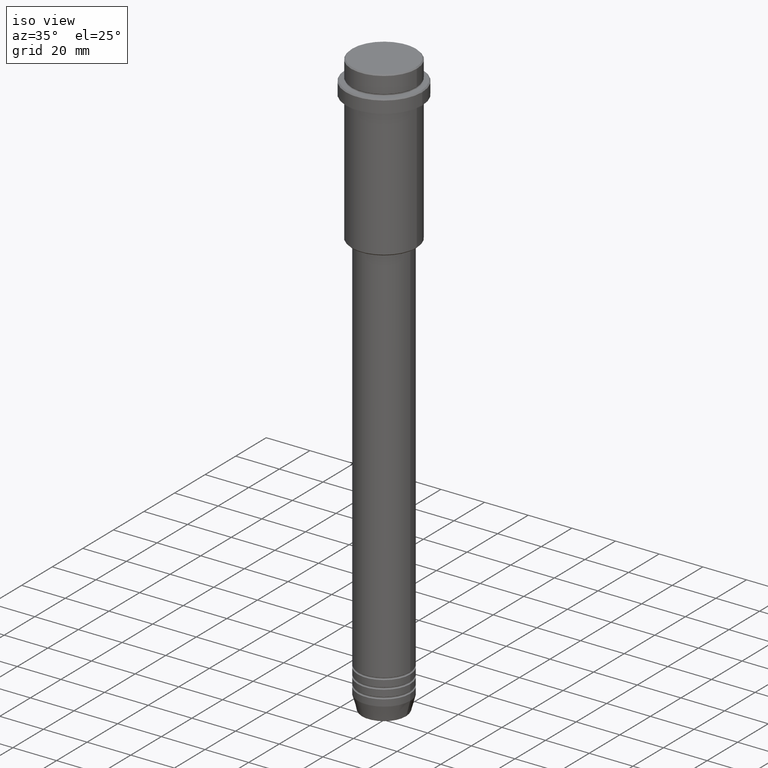
[diagram: clean part render]
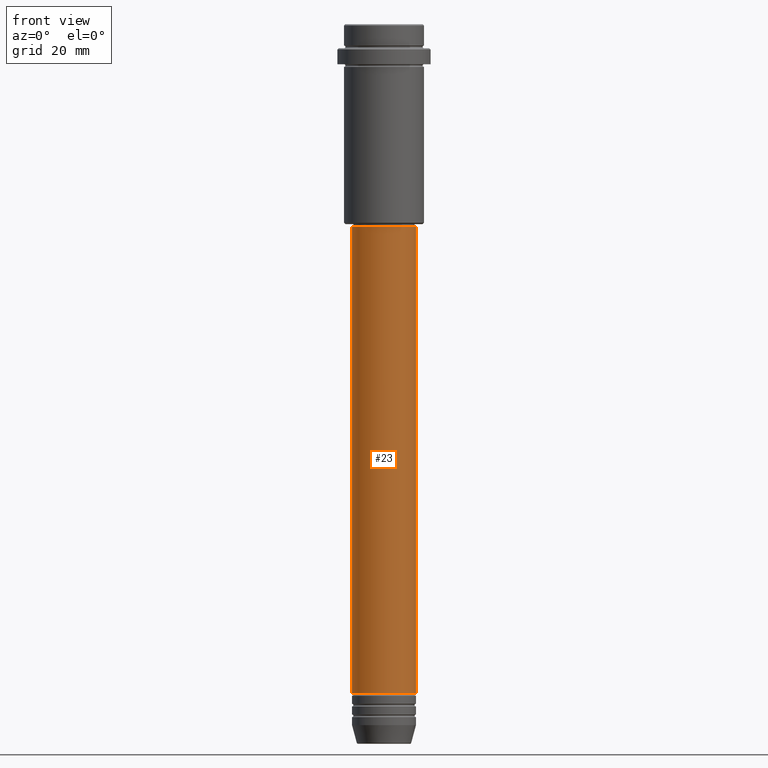
[diagram: tour spotlight — one face highlighted and labeled with its STEP entity id]
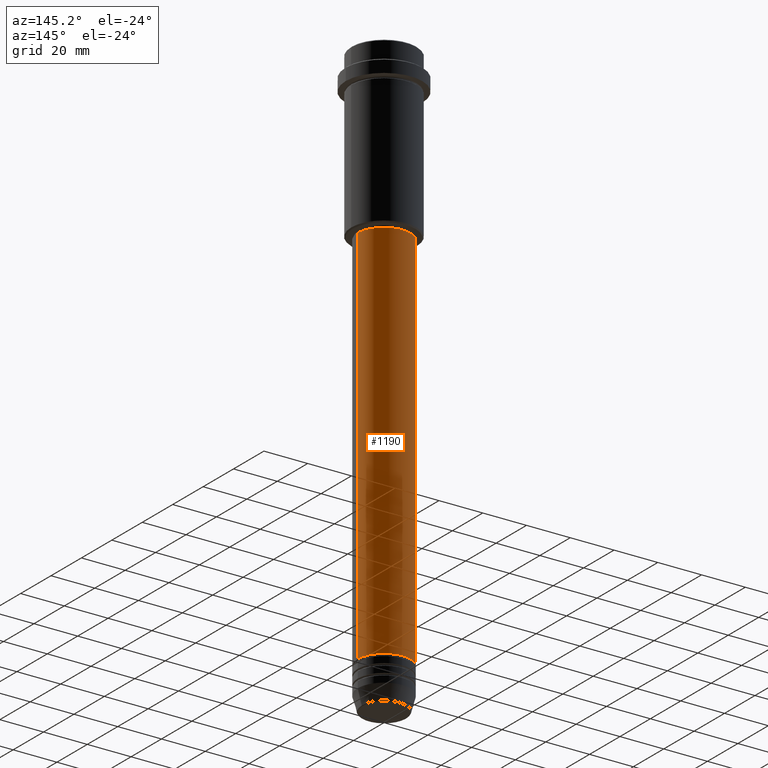
[diagram: tour spotlight — one face highlighted and labeled with its STEP entity id]
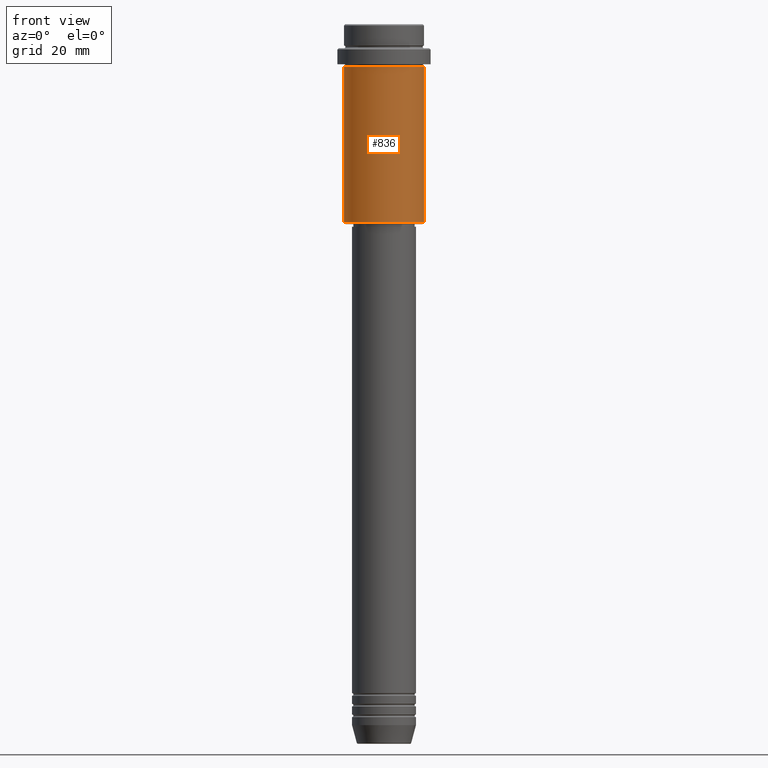
[diagram: tour spotlight — one face highlighted and labeled with its STEP entity id]
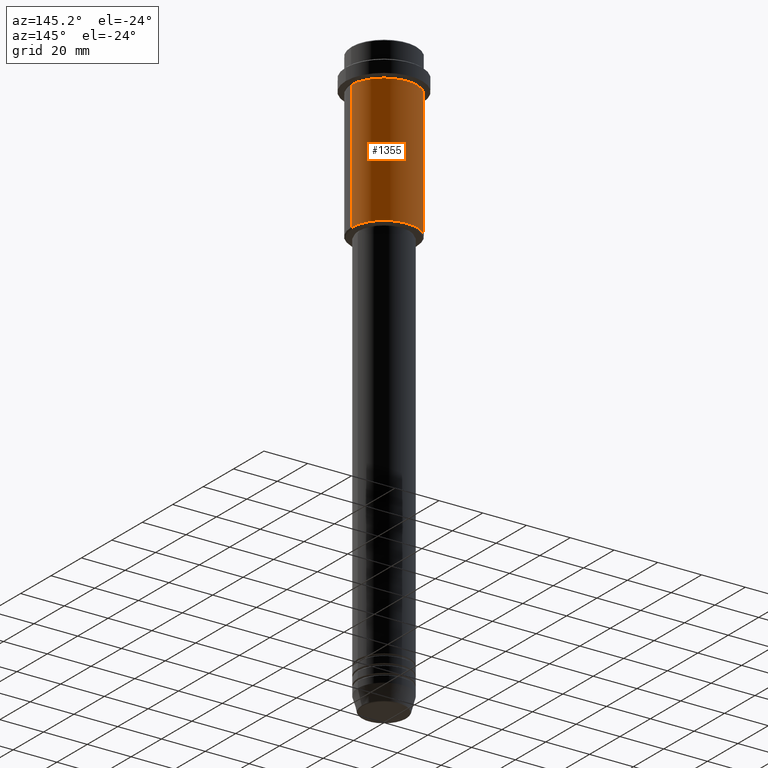
[diagram: tour spotlight — one face highlighted and labeled with its STEP entity id]
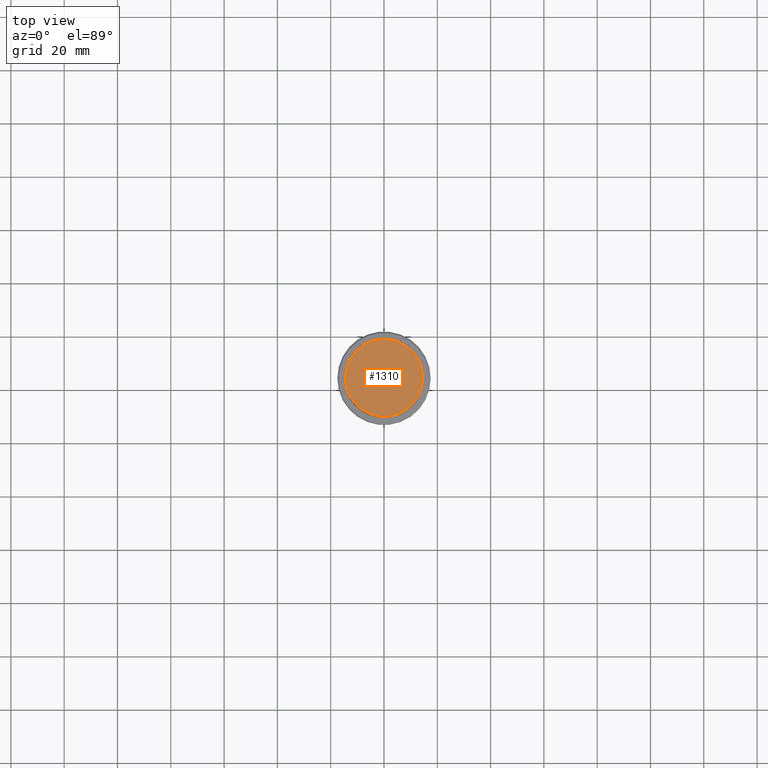
[diagram: tour spotlight — one face highlighted and labeled with its STEP entity id]
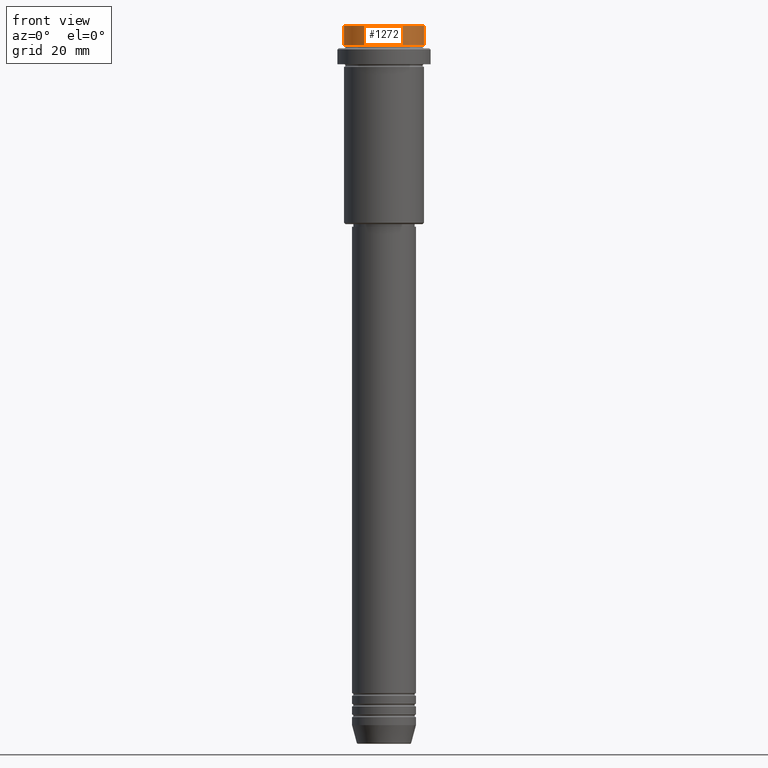
[diagram: tour spotlight — one face highlighted and labeled with its STEP entity id]
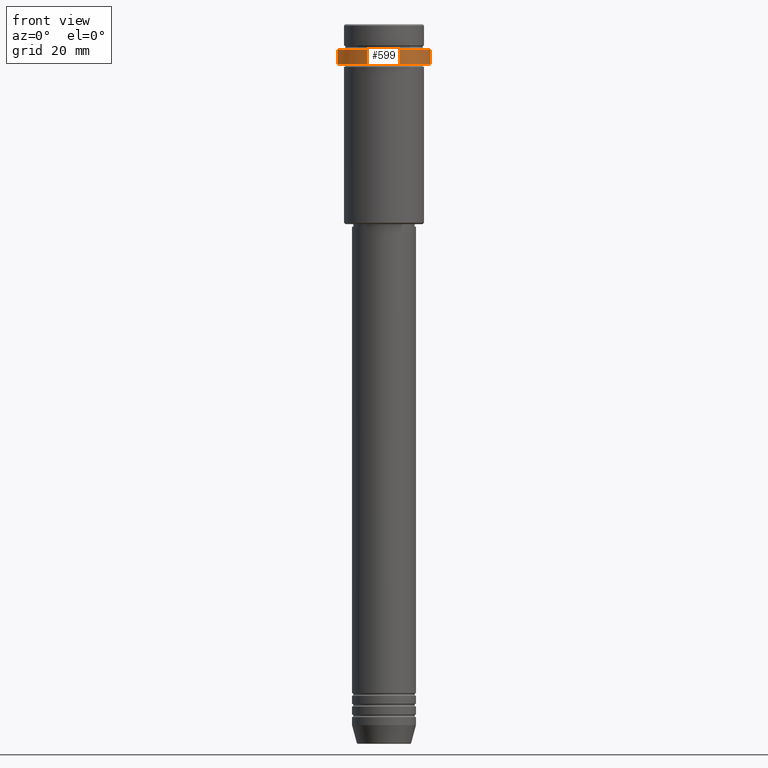
[diagram: tour spotlight — one face highlighted and labeled with its STEP entity id]
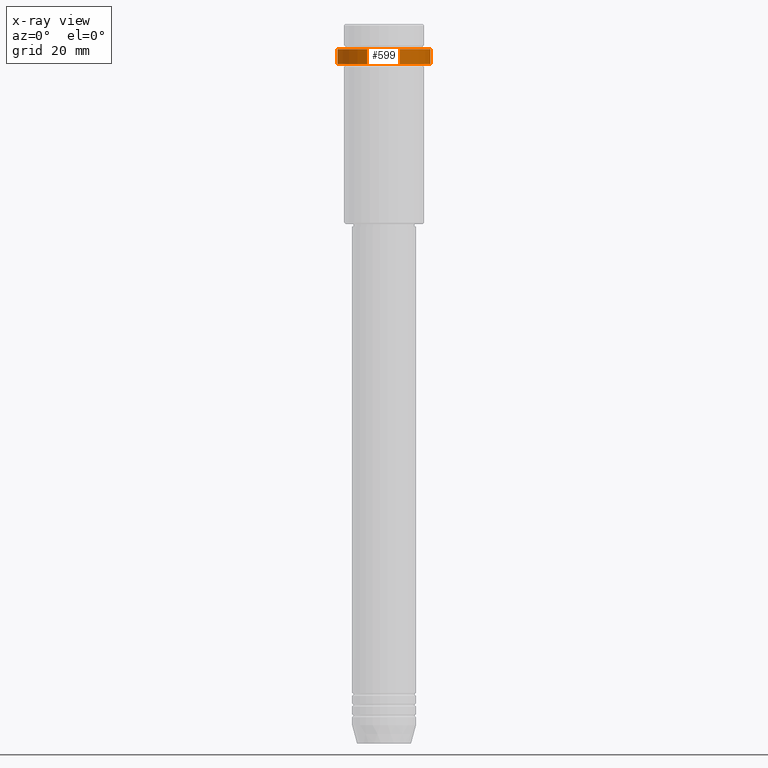
[diagram: x-ray of the same camera — body ghosted, this tour face saturated]
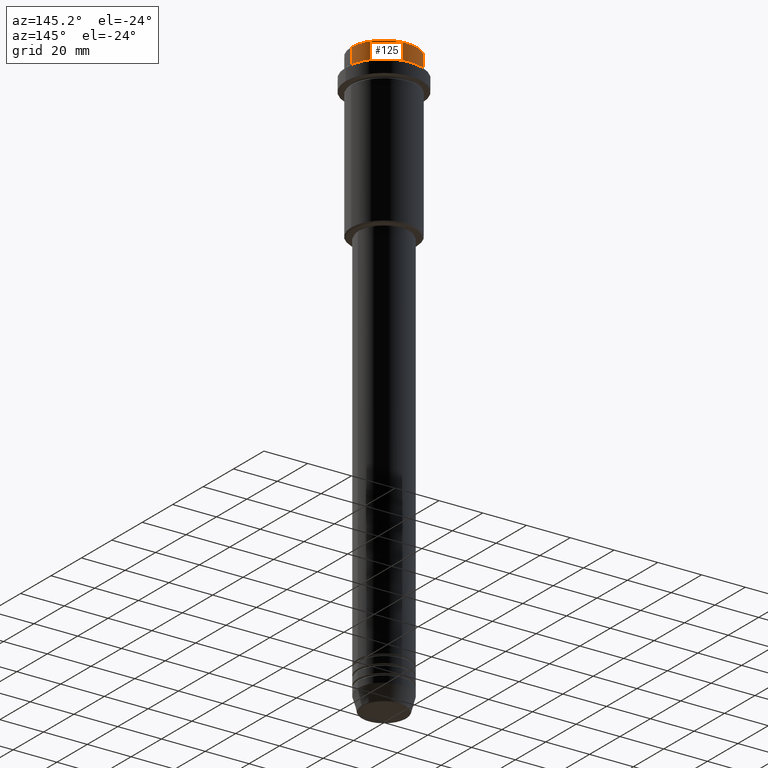
[diagram: tour spotlight — one face highlighted and labeled with its STEP entity id]
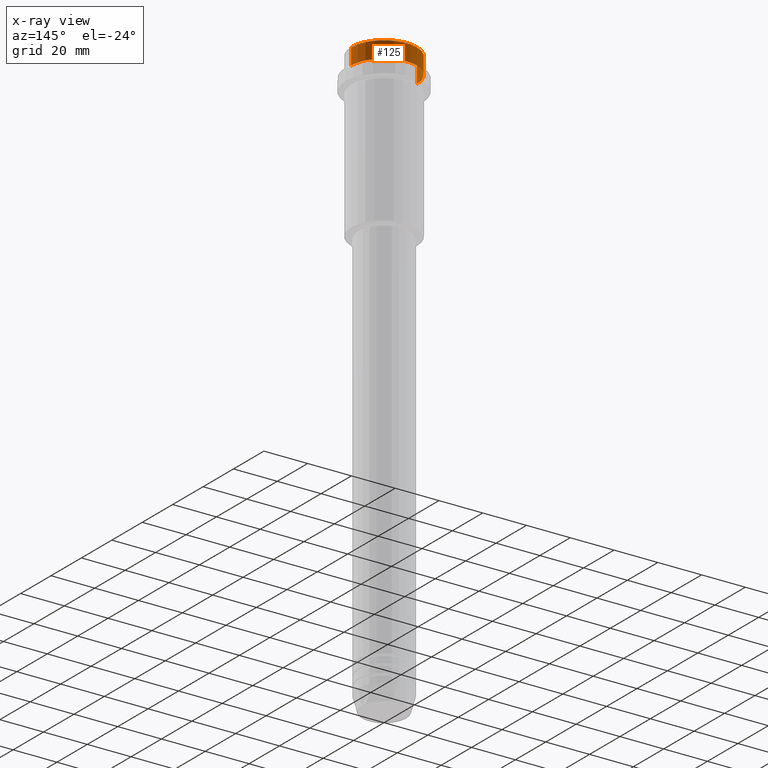
[diagram: x-ray of the same camera — body ghosted, this tour face saturated]
A machine part: a face-by-face anatomy tour. The part has 52 B-rep faces; the first image is the clean iso view, then the 8 largest visible faces are spotlighted one at a time (largest first), each with its STEP entity span.

Face 1 — front view, entity #23. In plain terms, the highlighted cylindrical surface (edge-blend (fillet) strip) has radius 12 mm, axis along (-0, -0, 1).
Definition (entity closure, byte-faithful):
#23 = ADVANCED_FACE ( 'NONE', ( #457 ), #1292, .T. ) ;
#102 = CARTESIAN_POINT ( 'NONE',  ( -12.00000000000000000, 1.469576158976823947E-15, -250.9999999999998863 ) ) ;
#138 = CARTESIAN_POINT ( 'NONE',  ( 0.000000000000000000, 0.000000000000000000, -250.9999999999998863 ) ) ;
#154 = LINE ( 'NONE', #588, #877 ) ;
#250 = CIRCLE ( 'NONE', #1174, 12.00000000000000000 ) ;
#271 = VECTOR ( 'NONE', #848, 1000.000000000000000 ) ;
#411 = EDGE_CURVE ( 'NONE', #838, #1134, #1053, .T. ) ;
#440 = AXIS2_PLACEMENT_3D ( 'NONE', #1089, #646, #555 ) ;
#448 = ORIENTED_EDGE ( 'NONE', *, *, #676, .F. ) ;
#457 = FACE_OUTER_BOUND ( 'NONE', #895, .T. ) ;
#496 = CARTESIAN_POINT ( 'NONE',  ( 11.99999999999999822, 0.000000000000000000, -76.00000000000001421 ) ) ;
#538 = CARTESIAN_POINT ( 'NONE',  ( -11.99999999999999822, 1.469576158976823750E-15, -76.00000000000001421 ) ) ;
#555 = DIRECTION ( 'NONE',  ( 1.000000000000000000, 0.000000000000000000, 0.000000000000000000 ) ) ;
#588 = CARTESIAN_POINT ( 'NONE',  ( -12.00000000000000000, 1.469576158976823947E-15, 0.000000000000000000 ) ) ;
#646 = DIRECTION ( 'NONE',  ( -0.000000000000000000, -0.000000000000000000, 1.000000000000000000 ) ) ;
#648 = CARTESIAN_POINT ( 'NONE',  ( 12.00000000000000000, 0.000000000000000000, 0.000000000000000000 ) ) ;
#653 = AXIS2_PLACEMENT_3D ( 'NONE', #1414, #755, #1323 ) ;
#676 = EDGE_CURVE ( 'NONE', #1189, #838, #154, .T. ) ;
#755 = DIRECTION ( 'NONE',  ( -0.000000000000000000, -0.000000000000000000, 1.000000000000000000 ) ) ;
#760 = VERTEX_POINT ( 'NONE', #1293 ) ;
#799 = ORIENTED_EDGE ( 'NONE', *, *, #411, .F. ) ;
#828 = ORIENTED_EDGE ( 'NONE', *, *, #981, .T. ) ;
#838 = VERTEX_POINT ( 'NONE', #538 ) ;
#848 = DIRECTION ( 'NONE',  ( -0.000000000000000000, -0.000000000000000000, 1.000000000000000000 ) ) ;
#877 = VECTOR ( 'NONE', #1017, 1000.000000000000000 ) ;
#895 = EDGE_LOOP ( 'NONE', ( #448, #828, #1317, #799 ) ) ;
#903 = DIRECTION ( 'NONE',  ( -0.000000000000000000, -0.000000000000000000, 1.000000000000000000 ) ) ;
#981 = EDGE_CURVE ( 'NONE', #1189, #760, #250, .T. ) ;
#993 = DIRECTION ( 'NONE',  ( 1.000000000000000000, 0.000000000000000000, 0.000000000000000000 ) ) ;
#1017 = DIRECTION ( 'NONE',  ( -0.000000000000000000, -0.000000000000000000, 1.000000000000000000 ) ) ;
#1053 = CIRCLE ( 'NONE', #440, 11.99999999999999822 ) ;
#1059 = LINE ( 'NONE', #648, #271 ) ;
#1089 = CARTESIAN_POINT ( 'NONE',  ( 0.000000000000000000, 0.000000000000000000, -76.00000000000001421 ) ) ;
#1134 = VERTEX_POINT ( 'NONE', #496 ) ;
#1174 = AXIS2_PLACEMENT_3D ( 'NONE', #138, #903, #993 ) ;
#1189 = VERTEX_POINT ( 'NONE', #102 ) ;
#1217 = EDGE_CURVE ( 'NONE', #760, #1134, #1059, .T. ) ;
#1292 = CYLINDRICAL_SURFACE ( 'NONE', #653, 12.00000000000000000 ) ;
#1293 = CARTESIAN_POINT ( 'NONE',  ( 12.00000000000000000, 0.000000000000000000, -250.9999999999998863 ) ) ;
#1317 = ORIENTED_EDGE ( 'NONE', *, *, #1217, .T. ) ;
#1323 = DIRECTION ( 'NONE',  ( 1.000000000000000000, 0.000000000000000000, 0.000000000000000000 ) ) ;
#1414 = CARTESIAN_POINT ( 'NONE',  ( 0.000000000000000000, 0.000000000000000000, 0.000000000000000000 ) ) ;

Face 2 — auxiliary view, entity #1190. In plain terms, the highlighted cylindrical surface (edge-blend (fillet) strip) has radius 12 mm, axis along (-0, -0, 1).
Definition (entity closure, byte-faithful):
#102 = CARTESIAN_POINT ( 'NONE',  ( -12.00000000000000000, 1.469576158976823947E-15, -250.9999999999998863 ) ) ;
#154 = LINE ( 'NONE', #588, #877 ) ;
#170 = DIRECTION ( 'NONE',  ( -0.000000000000000000, -0.000000000000000000, 1.000000000000000000 ) ) ;
#200 = EDGE_CURVE ( 'NONE', #760, #1189, #307, .T. ) ;
#204 = CYLINDRICAL_SURFACE ( 'NONE', #883, 12.00000000000000000 ) ;
#258 = DIRECTION ( 'NONE',  ( 1.000000000000000000, 0.000000000000000000, 0.000000000000000000 ) ) ;
#271 = VECTOR ( 'NONE', #848, 1000.000000000000000 ) ;
#281 = DIRECTION ( 'NONE',  ( 1.000000000000000000, 0.000000000000000000, 0.000000000000000000 ) ) ;
#293 = DIRECTION ( 'NONE',  ( -0.000000000000000000, -0.000000000000000000, 1.000000000000000000 ) ) ;
#307 = CIRCLE ( 'NONE', #762, 12.00000000000000000 ) ;
#396 = ORIENTED_EDGE ( 'NONE', *, *, #606, .F. ) ;
#409 = DIRECTION ( 'NONE',  ( -0.000000000000000000, -0.000000000000000000, 1.000000000000000000 ) ) ;
#496 = CARTESIAN_POINT ( 'NONE',  ( 11.99999999999999822, 0.000000000000000000, -76.00000000000001421 ) ) ;
#508 = DIRECTION ( 'NONE',  ( 1.000000000000000000, 0.000000000000000000, 0.000000000000000000 ) ) ;
#538 = CARTESIAN_POINT ( 'NONE',  ( -11.99999999999999822, 1.469576158976823750E-15, -76.00000000000001421 ) ) ;
#544 = ORIENTED_EDGE ( 'NONE', *, *, #1217, .F. ) ;
#564 = CARTESIAN_POINT ( 'NONE',  ( 0.000000000000000000, 0.000000000000000000, -76.00000000000001421 ) ) ;
#588 = CARTESIAN_POINT ( 'NONE',  ( -12.00000000000000000, 1.469576158976823947E-15, 0.000000000000000000 ) ) ;
#606 = EDGE_CURVE ( 'NONE', #1134, #838, #1128, .T. ) ;
#621 = FACE_OUTER_BOUND ( 'NONE', #1188, .T. ) ;
#648 = CARTESIAN_POINT ( 'NONE',  ( 12.00000000000000000, 0.000000000000000000, 0.000000000000000000 ) ) ;
#676 = EDGE_CURVE ( 'NONE', #1189, #838, #154, .T. ) ;
#721 = AXIS2_PLACEMENT_3D ( 'NONE', #564, #293, #281 ) ;
#760 = VERTEX_POINT ( 'NONE', #1293 ) ;
#762 = AXIS2_PLACEMENT_3D ( 'NONE', #1028, #170, #258 ) ;
#826 = CARTESIAN_POINT ( 'NONE',  ( 0.000000000000000000, 0.000000000000000000, 0.000000000000000000 ) ) ;
#838 = VERTEX_POINT ( 'NONE', #538 ) ;
#848 = DIRECTION ( 'NONE',  ( -0.000000000000000000, -0.000000000000000000, 1.000000000000000000 ) ) ;
#877 = VECTOR ( 'NONE', #1017, 1000.000000000000000 ) ;
#883 = AXIS2_PLACEMENT_3D ( 'NONE', #826, #409, #508 ) ;
#954 = ORIENTED_EDGE ( 'NONE', *, *, #676, .T. ) ;
#1017 = DIRECTION ( 'NONE',  ( -0.000000000000000000, -0.000000000000000000, 1.000000000000000000 ) ) ;
#1028 = CARTESIAN_POINT ( 'NONE',  ( 0.000000000000000000, 0.000000000000000000, -250.9999999999998863 ) ) ;
#1059 = LINE ( 'NONE', #648, #271 ) ;
#1128 = CIRCLE ( 'NONE', #721, 11.99999999999999822 ) ;
#1134 = VERTEX_POINT ( 'NONE', #496 ) ;
#1188 = EDGE_LOOP ( 'NONE', ( #1364, #954, #396, #544 ) ) ;
#1189 = VERTEX_POINT ( 'NONE', #102 ) ;
#1190 = ADVANCED_FACE ( 'NONE', ( #621 ), #204, .T. ) ;
#1217 = EDGE_CURVE ( 'NONE', #760, #1134, #1059, .T. ) ;
#1293 = CARTESIAN_POINT ( 'NONE',  ( 12.00000000000000000, 0.000000000000000000, -250.9999999999998863 ) ) ;
#1364 = ORIENTED_EDGE ( 'NONE', *, *, #200, .T. ) ;

Face 3 — front view, entity #836. In plain terms, the highlighted cylindrical surface (partial cylindrical patch) has radius 15 mm, axis along (-0, -0, 1).
Definition (entity closure, byte-faithful):
#18 = ORIENTED_EDGE ( 'NONE', *, *, #487, .F. ) ;
#84 = VECTOR ( 'NONE', #415, 1000.000000000000000 ) ;
#106 = CYLINDRICAL_SURFACE ( 'NONE', #337, 15.00000000000000000 ) ;
#212 = DIRECTION ( 'NONE',  ( -0.000000000000000000, -0.000000000000000000, 1.000000000000000000 ) ) ;
#288 = VECTOR ( 'NONE', #502, 1000.000000000000000 ) ;
#310 = CARTESIAN_POINT ( 'NONE',  ( 0.000000000000000000, 0.000000000000000000, 0.000000000000000000 ) ) ;
#320 = VERTEX_POINT ( 'NONE', #1147 ) ;
#337 = AXIS2_PLACEMENT_3D ( 'NONE', #310, #212, #645 ) ;
#339 = VERTEX_POINT ( 'NONE', #832 ) ;
#354 = ORIENTED_EDGE ( 'NONE', *, *, #1261, .T. ) ;
#380 = CIRCLE ( 'NONE', #1034, 15.00000000000000178 ) ;
#391 = EDGE_LOOP ( 'NONE', ( #1235, #1333, #354, #18 ) ) ;
#415 = DIRECTION ( 'NONE',  ( -0.000000000000000000, -0.000000000000000000, 1.000000000000000000 ) ) ;
#425 = DIRECTION ( 'NONE',  ( -0.000000000000000000, -0.000000000000000000, 1.000000000000000000 ) ) ;
#439 = CARTESIAN_POINT ( 'NONE',  ( 15.00000000000000178, 0.000000000000000000, -16.00000000000000000 ) ) ;
#445 = CIRCLE ( 'NONE', #471, 15.00000000000000000 ) ;
#471 = AXIS2_PLACEMENT_3D ( 'NONE', #666, #1085, #1187 ) ;
#487 = EDGE_CURVE ( 'NONE', #1201, #1404, #380, .T. ) ;
#502 = DIRECTION ( 'NONE',  ( -0.000000000000000000, -0.000000000000000000, 1.000000000000000000 ) ) ;
#643 = CARTESIAN_POINT ( 'NONE',  ( 15.00000000000000000, 0.000000000000000000, 0.000000000000000000 ) ) ;
#645 = DIRECTION ( 'NONE',  ( 1.000000000000000000, 0.000000000000000000, 0.000000000000000000 ) ) ;
#666 = CARTESIAN_POINT ( 'NONE',  ( 0.000000000000000000, 0.000000000000000000, -74.49999999999994316 ) ) ;
#777 = DIRECTION ( 'NONE',  ( 1.000000000000000000, 0.000000000000000000, 0.000000000000000000 ) ) ;
#832 = CARTESIAN_POINT ( 'NONE',  ( -15.00000000000000000, 1.836970198721029589E-15, -74.49999999999994316 ) ) ;
#836 = ADVANCED_FACE ( 'NONE', ( #1302 ), #106, .T. ) ;
#922 = LINE ( 'NONE', #1361, #288 ) ;
#956 = LINE ( 'NONE', #643, #84 ) ;
#980 = CARTESIAN_POINT ( 'NONE',  ( 0.000000000000000000, 0.000000000000000000, -16.00000000000000000 ) ) ;
#1007 = EDGE_CURVE ( 'NONE', #339, #1201, #922, .T. ) ;
#1034 = AXIS2_PLACEMENT_3D ( 'NONE', #980, #425, #777 ) ;
#1085 = DIRECTION ( 'NONE',  ( -0.000000000000000000, -0.000000000000000000, 1.000000000000000000 ) ) ;
#1147 = CARTESIAN_POINT ( 'NONE',  ( 15.00000000000000000, 0.000000000000000000, -74.49999999999994316 ) ) ;
#1187 = DIRECTION ( 'NONE',  ( -1.000000000000000000, 0.000000000000000000, 0.000000000000000000 ) ) ;
#1201 = VERTEX_POINT ( 'NONE', #1263 ) ;
#1235 = ORIENTED_EDGE ( 'NONE', *, *, #1007, .F. ) ;
#1261 = EDGE_CURVE ( 'NONE', #320, #1404, #956, .T. ) ;
#1263 = CARTESIAN_POINT ( 'NONE',  ( -15.00000000000000355, 1.836970198721029983E-15, -16.00000000000000000 ) ) ;
#1302 = FACE_OUTER_BOUND ( 'NONE', #391, .T. ) ;
#1333 = ORIENTED_EDGE ( 'NONE', *, *, #1380, .T. ) ;
#1361 = CARTESIAN_POINT ( 'NONE',  ( -15.00000000000000000, 1.836970198721029589E-15, 0.000000000000000000 ) ) ;
#1380 = EDGE_CURVE ( 'NONE', #339, #320, #445, .T. ) ;
#1404 = VERTEX_POINT ( 'NONE', #439 ) ;

Face 4 — auxiliary view, entity #1355. In plain terms, the highlighted cylindrical surface (partial cylindrical patch) has radius 15 mm, axis along (-0, -0, 1).
Definition (entity closure, byte-faithful):
#44 = AXIS2_PLACEMENT_3D ( 'NONE', #1191, #872, #436 ) ;
#75 = CARTESIAN_POINT ( 'NONE',  ( 0.000000000000000000, 0.000000000000000000, -74.49999999999994316 ) ) ;
#84 = VECTOR ( 'NONE', #415, 1000.000000000000000 ) ;
#105 = AXIS2_PLACEMENT_3D ( 'NONE', #75, #178, #387 ) ;
#159 = ORIENTED_EDGE ( 'NONE', *, *, #278, .T. ) ;
#178 = DIRECTION ( 'NONE',  ( -0.000000000000000000, -0.000000000000000000, 1.000000000000000000 ) ) ;
#223 = CIRCLE ( 'NONE', #105, 15.00000000000000000 ) ;
#237 = DIRECTION ( 'NONE',  ( 1.000000000000000000, 0.000000000000000000, 0.000000000000000000 ) ) ;
#278 = EDGE_CURVE ( 'NONE', #320, #339, #223, .T. ) ;
#288 = VECTOR ( 'NONE', #502, 1000.000000000000000 ) ;
#320 = VERTEX_POINT ( 'NONE', #1147 ) ;
#339 = VERTEX_POINT ( 'NONE', #832 ) ;
#387 = DIRECTION ( 'NONE',  ( -1.000000000000000000, 0.000000000000000000, 0.000000000000000000 ) ) ;
#415 = DIRECTION ( 'NONE',  ( -0.000000000000000000, -0.000000000000000000, 1.000000000000000000 ) ) ;
#436 = DIRECTION ( 'NONE',  ( 1.000000000000000000, 0.000000000000000000, 0.000000000000000000 ) ) ;
#439 = CARTESIAN_POINT ( 'NONE',  ( 15.00000000000000178, 0.000000000000000000, -16.00000000000000000 ) ) ;
#502 = DIRECTION ( 'NONE',  ( -0.000000000000000000, -0.000000000000000000, 1.000000000000000000 ) ) ;
#567 = CYLINDRICAL_SURFACE ( 'NONE', #1341, 15.00000000000000000 ) ;
#643 = CARTESIAN_POINT ( 'NONE',  ( 15.00000000000000000, 0.000000000000000000, 0.000000000000000000 ) ) ;
#756 = DIRECTION ( 'NONE',  ( -0.000000000000000000, -0.000000000000000000, 1.000000000000000000 ) ) ;
#765 = FACE_OUTER_BOUND ( 'NONE', #1132, .T. ) ;
#779 = CARTESIAN_POINT ( 'NONE',  ( 0.000000000000000000, 0.000000000000000000, 0.000000000000000000 ) ) ;
#832 = CARTESIAN_POINT ( 'NONE',  ( -15.00000000000000000, 1.836970198721029589E-15, -74.49999999999994316 ) ) ;
#845 = EDGE_CURVE ( 'NONE', #1404, #1201, #1154, .T. ) ;
#872 = DIRECTION ( 'NONE',  ( -0.000000000000000000, -0.000000000000000000, 1.000000000000000000 ) ) ;
#917 = ORIENTED_EDGE ( 'NONE', *, *, #845, .F. ) ;
#922 = LINE ( 'NONE', #1361, #288 ) ;
#956 = LINE ( 'NONE', #643, #84 ) ;
#1007 = EDGE_CURVE ( 'NONE', #339, #1201, #922, .T. ) ;
#1132 = EDGE_LOOP ( 'NONE', ( #159, #1239, #917, #1155 ) ) ;
#1147 = CARTESIAN_POINT ( 'NONE',  ( 15.00000000000000000, 0.000000000000000000, -74.49999999999994316 ) ) ;
#1154 = CIRCLE ( 'NONE', #44, 15.00000000000000178 ) ;
#1155 = ORIENTED_EDGE ( 'NONE', *, *, #1261, .F. ) ;
#1191 = CARTESIAN_POINT ( 'NONE',  ( 0.000000000000000000, 0.000000000000000000, -16.00000000000000000 ) ) ;
#1201 = VERTEX_POINT ( 'NONE', #1263 ) ;
#1239 = ORIENTED_EDGE ( 'NONE', *, *, #1007, .T. ) ;
#1261 = EDGE_CURVE ( 'NONE', #320, #1404, #956, .T. ) ;
#1263 = CARTESIAN_POINT ( 'NONE',  ( -15.00000000000000355, 1.836970198721029983E-15, -16.00000000000000000 ) ) ;
#1341 = AXIS2_PLACEMENT_3D ( 'NONE', #779, #756, #237 ) ;
#1355 = ADVANCED_FACE ( 'NONE', ( #765 ), #567, .T. ) ;
#1361 = CARTESIAN_POINT ( 'NONE',  ( -15.00000000000000000, 1.836970198721029589E-15, 0.000000000000000000 ) ) ;
#1404 = VERTEX_POINT ( 'NONE', #439 ) ;

Face 5 — top view, entity #1310. In plain terms, the highlighted planar face has unit normal (0, -0, 1).
Definition (entity closure, byte-faithful):
#9 = DIRECTION ( 'NONE',  ( -0.000000000000000000, -0.000000000000000000, 1.000000000000000000 ) ) ;
#78 = EDGE_CURVE ( 'NONE', #98, #1369, #1379, .T. ) ;
#97 = EDGE_CURVE ( 'NONE', #1369, #98, #222, .T. ) ;
#98 = VERTEX_POINT ( 'NONE', #269 ) ;
#127 = CARTESIAN_POINT ( 'NONE',  ( 0.000000000000000000, 0.000000000000000000, 0.000000000000000000 ) ) ;
#136 = FACE_OUTER_BOUND ( 'NONE', #641, .T. ) ;
#222 = CIRCLE ( 'NONE', #963, 14.50000000000003908 ) ;
#230 = CARTESIAN_POINT ( 'NONE',  ( 0.000000000000000000, 0.000000000000000000, 0.000000000000000000 ) ) ;
#269 = CARTESIAN_POINT ( 'NONE',  ( 14.50000000000003908, 1.806354028742348168E-15, 0.000000000000000000 ) ) ;
#324 = DIRECTION ( 'NONE',  ( 0.000000000000000000, -0.000000000000000000, 1.000000000000000000 ) ) ;
#521 = ORIENTED_EDGE ( 'NONE', *, *, #97, .T. ) ;
#540 = AXIS2_PLACEMENT_3D ( 'NONE', #127, #324, #1110 ) ;
#581 = DIRECTION ( 'NONE',  ( -0.000000000000000000, -0.000000000000000000, 1.000000000000000000 ) ) ;
#616 = ORIENTED_EDGE ( 'NONE', *, *, #78, .T. ) ;
#641 = EDGE_LOOP ( 'NONE', ( #521, #616 ) ) ;
#695 = DIRECTION ( 'NONE',  ( 1.000000000000000000, 0.000000000000000000, 0.000000000000000000 ) ) ;
#697 = AXIS2_PLACEMENT_3D ( 'NONE', #230, #9, #1210 ) ;
#710 = CARTESIAN_POINT ( 'NONE',  ( 0.000000000000000000, 0.000000000000000000, 0.000000000000000000 ) ) ;
#963 = AXIS2_PLACEMENT_3D ( 'NONE', #710, #581, #695 ) ;
#972 = PLANE ( 'NONE',  #540 ) ;
#1110 = DIRECTION ( 'NONE',  ( 1.000000000000000000, 0.000000000000000000, 0.000000000000000000 ) ) ;
#1205 = CARTESIAN_POINT ( 'NONE',  ( -14.50000000000003908, 0.000000000000000000, 0.000000000000000000 ) ) ;
#1210 = DIRECTION ( 'NONE',  ( 1.000000000000000000, 0.000000000000000000, 0.000000000000000000 ) ) ;
#1310 = ADVANCED_FACE ( 'NONE', ( #136 ), #972, .T. ) ;
#1369 = VERTEX_POINT ( 'NONE', #1205 ) ;
#1379 = CIRCLE ( 'NONE', #697, 14.50000000000003908 ) ;

Face 6 — front view, entity #1272. In plain terms, the highlighted cylindrical surface (partial cylindrical patch) has radius 15 mm, axis along (-0, -0, 1).
Definition (entity closure, byte-faithful):
#11 = EDGE_CURVE ( 'NONE', #985, #1106, #152, .T. ) ;
#24 = CARTESIAN_POINT ( 'NONE',  ( 15.00000000000000000, 0.000000000000000000, -0.4999999999999831246 ) ) ;
#71 = ORIENTED_EDGE ( 'NONE', *, *, #297, .F. ) ;
#107 = AXIS2_PLACEMENT_3D ( 'NONE', #206, #639, #1397 ) ;
#152 = CIRCLE ( 'NONE', #466, 15.00000000000000000 ) ;
#206 = CARTESIAN_POINT ( 'NONE',  ( 0.000000000000000000, 0.000000000000000000, -7.999999999999998224 ) ) ;
#216 = DIRECTION ( 'NONE',  ( 1.000000000000000000, 0.000000000000000000, 0.000000000000000000 ) ) ;
#297 = EDGE_CURVE ( 'NONE', #862, #1106, #819, .T. ) ;
#316 = EDGE_CURVE ( 'NONE', #1166, #985, #950, .T. ) ;
#318 = CYLINDRICAL_SURFACE ( 'NONE', #1410, 15.00000000000000000 ) ;
#398 = VECTOR ( 'NONE', #1158, 1000.000000000000000 ) ;
#419 = FACE_OUTER_BOUND ( 'NONE', #1381, .T. ) ;
#466 = AXIS2_PLACEMENT_3D ( 'NONE', #1318, #1181, #971 ) ;
#506 = DIRECTION ( 'NONE',  ( -0.000000000000000000, -0.000000000000000000, 1.000000000000000000 ) ) ;
#576 = ORIENTED_EDGE ( 'NONE', *, *, #316, .T. ) ;
#639 = DIRECTION ( 'NONE',  ( -0.000000000000000000, -0.000000000000000000, 1.000000000000000000 ) ) ;
#714 = CARTESIAN_POINT ( 'NONE',  ( -15.00000000000000000, 1.836970198721029589E-15, 0.000000000000000000 ) ) ;
#720 = VECTOR ( 'NONE', #506, 1000.000000000000000 ) ;
#750 = CARTESIAN_POINT ( 'NONE',  ( 0.000000000000000000, 0.000000000000000000, 0.000000000000000000 ) ) ;
#817 = EDGE_CURVE ( 'NONE', #862, #1166, #1037, .T. ) ;
#819 = LINE ( 'NONE', #714, #720 ) ;
#835 = CARTESIAN_POINT ( 'NONE',  ( 15.00000000000000000, 0.000000000000000000, -7.999999999999998224 ) ) ;
#862 = VERTEX_POINT ( 'NONE', #1325 ) ;
#950 = LINE ( 'NONE', #1393, #398 ) ;
#971 = DIRECTION ( 'NONE',  ( 1.000000000000000000, 0.000000000000000000, 0.000000000000000000 ) ) ;
#985 = VERTEX_POINT ( 'NONE', #24 ) ;
#1022 = CARTESIAN_POINT ( 'NONE',  ( -15.00000000000000000, 1.836970198721029589E-15, -0.4999999999999831246 ) ) ;
#1037 = CIRCLE ( 'NONE', #107, 15.00000000000000000 ) ;
#1106 = VERTEX_POINT ( 'NONE', #1022 ) ;
#1108 = ORIENTED_EDGE ( 'NONE', *, *, #817, .T. ) ;
#1158 = DIRECTION ( 'NONE',  ( -0.000000000000000000, -0.000000000000000000, 1.000000000000000000 ) ) ;
#1166 = VERTEX_POINT ( 'NONE', #835 ) ;
#1181 = DIRECTION ( 'NONE',  ( 0.000000000000000000, 0.000000000000000000, -1.000000000000000000 ) ) ;
#1182 = DIRECTION ( 'NONE',  ( -0.000000000000000000, -0.000000000000000000, 1.000000000000000000 ) ) ;
#1272 = ADVANCED_FACE ( 'NONE', ( #419 ), #318, .T. ) ;
#1318 = CARTESIAN_POINT ( 'NONE',  ( 0.000000000000000000, 0.000000000000000000, -0.4999999999999831246 ) ) ;
#1325 = CARTESIAN_POINT ( 'NONE',  ( -15.00000000000000000, 1.836970198721029589E-15, -7.999999999999998224 ) ) ;
#1330 = ORIENTED_EDGE ( 'NONE', *, *, #11, .T. ) ;
#1381 = EDGE_LOOP ( 'NONE', ( #71, #1108, #576, #1330 ) ) ;
#1393 = CARTESIAN_POINT ( 'NONE',  ( 15.00000000000000000, 0.000000000000000000, 0.000000000000000000 ) ) ;
#1397 = DIRECTION ( 'NONE',  ( 1.000000000000000000, 0.000000000000000000, 0.000000000000000000 ) ) ;
#1410 = AXIS2_PLACEMENT_3D ( 'NONE', #750, #1182, #216 ) ;

Face 7 — front view, entity #599. An x-ray twin of the same camera follows (body ghosted, this face saturated) — the face is partly hidden behind the body. In plain terms, the highlighted cylindrical surface (partial cylindrical patch) has radius 17.5 mm, axis along (-0, -0, 1).
Definition (entity closure, byte-faithful):
#40 = CARTESIAN_POINT ( 'NONE',  ( 17.50000000000000000, 0.000000000000000000, 0.000000000000000000 ) ) ;
#155 = AXIS2_PLACEMENT_3D ( 'NONE', #689, #368, #1115 ) ;
#163 = VERTEX_POINT ( 'NONE', #1350 ) ;
#248 = DIRECTION ( 'NONE',  ( -0.000000000000000000, -0.000000000000000000, 1.000000000000000000 ) ) ;
#255 = DIRECTION ( 'NONE',  ( 1.000000000000000000, 0.000000000000000000, 0.000000000000000000 ) ) ;
#347 = ORIENTED_EDGE ( 'NONE', *, *, #663, .T. ) ;
#368 = DIRECTION ( 'NONE',  ( 0.000000000000000000, 0.000000000000000000, -1.000000000000000000 ) ) ;
#374 = VERTEX_POINT ( 'NONE', #739 ) ;
#449 = VERTEX_POINT ( 'NONE', #1411 ) ;
#492 = CIRCLE ( 'NONE', #155, 17.50000000000000000 ) ;
#534 = VERTEX_POINT ( 'NONE', #1304 ) ;
#578 = EDGE_CURVE ( 'NONE', #449, #163, #1006, .T. ) ;
#579 = DIRECTION ( 'NONE',  ( 1.000000000000000000, 0.000000000000000000, 0.000000000000000000 ) ) ;
#586 = AXIS2_PLACEMENT_3D ( 'NONE', #896, #1265, #579 ) ;
#599 = ADVANCED_FACE ( 'NONE', ( #1107 ), #906, .T. ) ;
#656 = VECTOR ( 'NONE', #248, 1000.000000000000000 ) ;
#663 = EDGE_CURVE ( 'NONE', #163, #534, #492, .T. ) ;
#674 = DIRECTION ( 'NONE',  ( -0.000000000000000000, -0.000000000000000000, 1.000000000000000000 ) ) ;
#689 = CARTESIAN_POINT ( 'NONE',  ( 0.000000000000000000, 0.000000000000000000, -9.500000000000028422 ) ) ;
#734 = ORIENTED_EDGE ( 'NONE', *, *, #578, .T. ) ;
#739 = CARTESIAN_POINT ( 'NONE',  ( -17.50000000000000000, 2.143131898507868248E-15, -15.00000000000000178 ) ) ;
#812 = VECTOR ( 'NONE', #674, 1000.000000000000000 ) ;
#831 = AXIS2_PLACEMENT_3D ( 'NONE', #1220, #1309, #255 ) ;
#891 = EDGE_CURVE ( 'NONE', #374, #449, #948, .T. ) ;
#896 = CARTESIAN_POINT ( 'NONE',  ( 0.000000000000000000, 0.000000000000000000, 0.000000000000000000 ) ) ;
#906 = CYLINDRICAL_SURFACE ( 'NONE', #586, 17.50000000000000000 ) ;
#948 = CIRCLE ( 'NONE', #831, 17.50000000000000000 ) ;
#976 = EDGE_CURVE ( 'NONE', #374, #534, #1320, .T. ) ;
#1006 = LINE ( 'NONE', #40, #656 ) ;
#1060 = EDGE_LOOP ( 'NONE', ( #1095, #1376, #734, #347 ) ) ;
#1086 = CARTESIAN_POINT ( 'NONE',  ( -17.50000000000000000, 2.143131898507868248E-15, 0.000000000000000000 ) ) ;
#1095 = ORIENTED_EDGE ( 'NONE', *, *, #976, .F. ) ;
#1107 = FACE_OUTER_BOUND ( 'NONE', #1060, .T. ) ;
#1115 = DIRECTION ( 'NONE',  ( 1.000000000000000000, 0.000000000000000000, 0.000000000000000000 ) ) ;
#1220 = CARTESIAN_POINT ( 'NONE',  ( 0.000000000000000000, 0.000000000000000000, -15.00000000000000178 ) ) ;
#1265 = DIRECTION ( 'NONE',  ( -0.000000000000000000, -0.000000000000000000, 1.000000000000000000 ) ) ;
#1304 = CARTESIAN_POINT ( 'NONE',  ( -17.50000000000000000, 2.143131898507868248E-15, -9.500000000000028422 ) ) ;
#1309 = DIRECTION ( 'NONE',  ( -0.000000000000000000, -0.000000000000000000, 1.000000000000000000 ) ) ;
#1320 = LINE ( 'NONE', #1086, #812 ) ;
#1350 = CARTESIAN_POINT ( 'NONE',  ( 17.50000000000000000, 0.000000000000000000, -9.500000000000028422 ) ) ;
#1376 = ORIENTED_EDGE ( 'NONE', *, *, #891, .T. ) ;
#1411 = CARTESIAN_POINT ( 'NONE',  ( 17.50000000000000000, 0.000000000000000000, -15.00000000000000178 ) ) ;

Face 8 — auxiliary view, entity #125. An x-ray twin of the same camera follows (body ghosted, this face saturated) — the face is partly hidden behind the body. In plain terms, the highlighted cylindrical surface (partial cylindrical patch) has radius 15 mm, axis along (-0, -0, 1).
Definition (entity closure, byte-faithful):
#21 = ORIENTED_EDGE ( 'NONE', *, *, #918, .T. ) ;
#24 = CARTESIAN_POINT ( 'NONE',  ( 15.00000000000000000, 0.000000000000000000, -0.4999999999999831246 ) ) ;
#45 = DIRECTION ( 'NONE',  ( -0.000000000000000000, -0.000000000000000000, 1.000000000000000000 ) ) ;
#109 = ORIENTED_EDGE ( 'NONE', *, *, #297, .T. ) ;
#125 = ADVANCED_FACE ( 'NONE', ( #356 ), #1328, .T. ) ;
#146 = EDGE_CURVE ( 'NONE', #1166, #862, #1008, .T. ) ;
#188 = EDGE_LOOP ( 'NONE', ( #600, #109, #21, #583 ) ) ;
#297 = EDGE_CURVE ( 'NONE', #862, #1106, #819, .T. ) ;
#316 = EDGE_CURVE ( 'NONE', #1166, #985, #950, .T. ) ;
#336 = DIRECTION ( 'NONE',  ( 1.000000000000000000, 0.000000000000000000, 0.000000000000000000 ) ) ;
#356 = FACE_OUTER_BOUND ( 'NONE', #188, .T. ) ;
#398 = VECTOR ( 'NONE', #1158, 1000.000000000000000 ) ;
#422 = AXIS2_PLACEMENT_3D ( 'NONE', #1331, #999, #336 ) ;
#464 = DIRECTION ( 'NONE',  ( -0.000000000000000000, -0.000000000000000000, 1.000000000000000000 ) ) ;
#506 = DIRECTION ( 'NONE',  ( -0.000000000000000000, -0.000000000000000000, 1.000000000000000000 ) ) ;
#583 = ORIENTED_EDGE ( 'NONE', *, *, #316, .F. ) ;
#600 = ORIENTED_EDGE ( 'NONE', *, *, #146, .T. ) ;
#685 = CARTESIAN_POINT ( 'NONE',  ( 0.000000000000000000, 0.000000000000000000, 0.000000000000000000 ) ) ;
#714 = CARTESIAN_POINT ( 'NONE',  ( -15.00000000000000000, 1.836970198721029589E-15, 0.000000000000000000 ) ) ;
#720 = VECTOR ( 'NONE', #506, 1000.000000000000000 ) ;
#819 = LINE ( 'NONE', #714, #720 ) ;
#835 = CARTESIAN_POINT ( 'NONE',  ( 15.00000000000000000, 0.000000000000000000, -7.999999999999998224 ) ) ;
#862 = VERTEX_POINT ( 'NONE', #1325 ) ;
#918 = EDGE_CURVE ( 'NONE', #1106, #985, #969, .T. ) ;
#950 = LINE ( 'NONE', #1393, #398 ) ;
#969 = CIRCLE ( 'NONE', #422, 15.00000000000000000 ) ;
#985 = VERTEX_POINT ( 'NONE', #24 ) ;
#999 = DIRECTION ( 'NONE',  ( 0.000000000000000000, 0.000000000000000000, -1.000000000000000000 ) ) ;
#1002 = DIRECTION ( 'NONE',  ( 1.000000000000000000, 0.000000000000000000, 0.000000000000000000 ) ) ;
#1008 = CIRCLE ( 'NONE', #1148, 15.00000000000000000 ) ;
#1022 = CARTESIAN_POINT ( 'NONE',  ( -15.00000000000000000, 1.836970198721029589E-15, -0.4999999999999831246 ) ) ;
#1071 = AXIS2_PLACEMENT_3D ( 'NONE', #685, #464, #1002 ) ;
#1106 = VERTEX_POINT ( 'NONE', #1022 ) ;
#1123 = DIRECTION ( 'NONE',  ( 1.000000000000000000, 0.000000000000000000, 0.000000000000000000 ) ) ;
#1141 = CARTESIAN_POINT ( 'NONE',  ( 0.000000000000000000, 0.000000000000000000, -7.999999999999998224 ) ) ;
#1148 = AXIS2_PLACEMENT_3D ( 'NONE', #1141, #45, #1123 ) ;
#1158 = DIRECTION ( 'NONE',  ( -0.000000000000000000, -0.000000000000000000, 1.000000000000000000 ) ) ;
#1166 = VERTEX_POINT ( 'NONE', #835 ) ;
#1325 = CARTESIAN_POINT ( 'NONE',  ( -15.00000000000000000, 1.836970198721029589E-15, -7.999999999999998224 ) ) ;
#1328 = CYLINDRICAL_SURFACE ( 'NONE', #1071, 15.00000000000000000 ) ;
#1331 = CARTESIAN_POINT ( 'NONE',  ( 0.000000000000000000, 0.000000000000000000, -0.4999999999999831246 ) ) ;
#1393 = CARTESIAN_POINT ( 'NONE',  ( 15.00000000000000000, 0.000000000000000000, 0.000000000000000000 ) ) ;